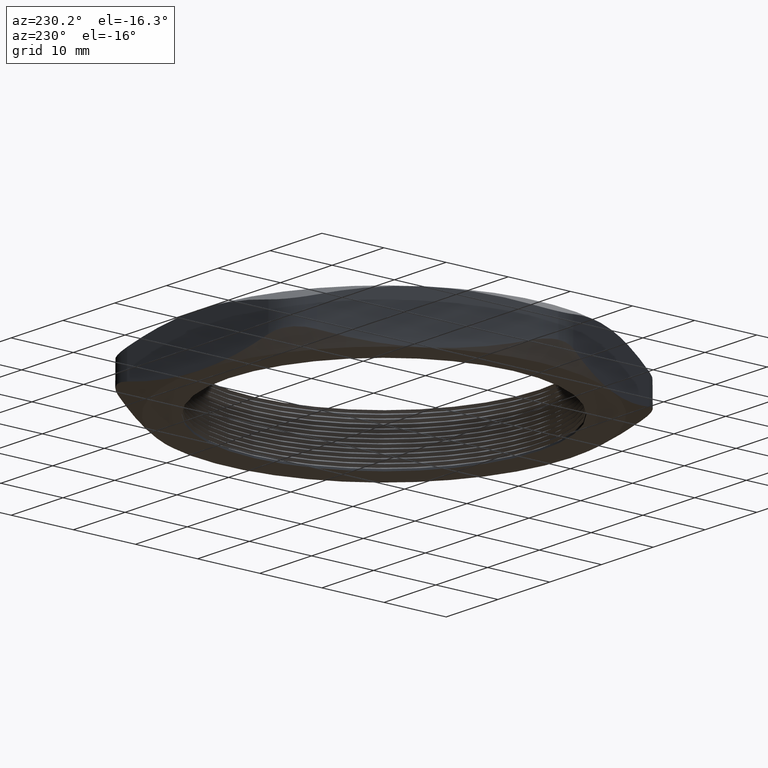
[diagram: clean part render]
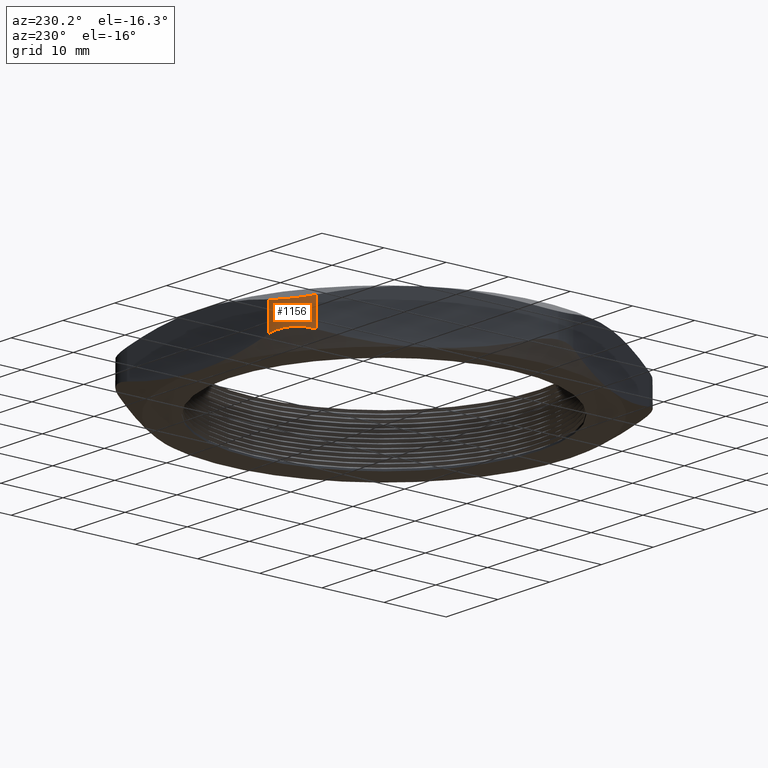
[diagram: same view with one face highlighted and labeled with its STEP entity id]
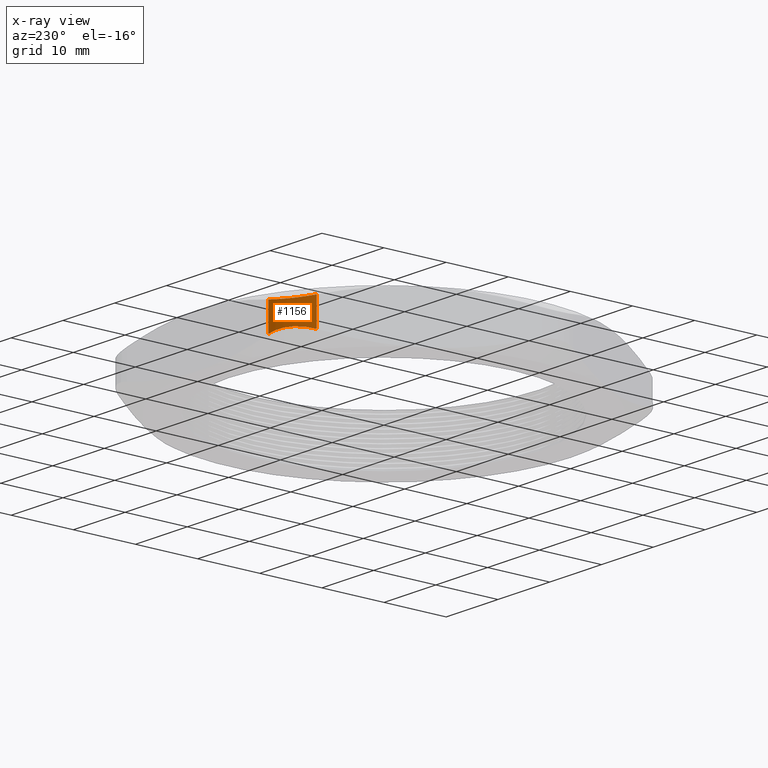
[diagram: x-ray of the same camera — body ghosted, the highlighted face saturated]
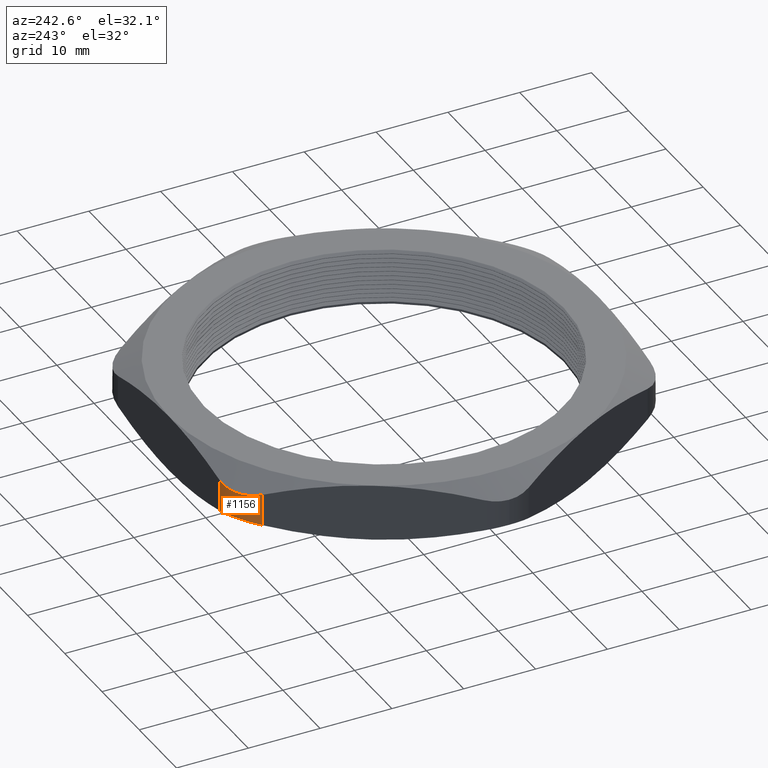
[diagram: same view with one face highlighted and labeled with its STEP entity id]
A machine part, auxiliary view. The second image highlights one B-rep face of the part: STEP entity #1156.
The next image is the same camera in x-ray: the body ghosted, the highlighted face saturated — about 0% of this face is hidden behind the body in this view.
A second angle (auxiliary view) of the same face is appended — the face is thin or edge-on in the first view.
In plain terms, the highlighted cylindrical surface (partial cylindrical patch) has radius 6.35 mm, axis along (0, 0, -1).
Its self-contained STEP definition (entity closure, byte-faithful):
#36 = CARTESIAN_POINT ( 'NONE',  ( -0.7426406280276897100, 1.073708700491182700, 0.2376202493319567200 ) ) ;
#37 = CARTESIAN_POINT ( 'NONE',  ( -0.7292618027920839700, 1.091195033875054200, 0.2336283984944736200 ) ) ;
#38 = CARTESIAN_POINT ( 'NONE',  ( -0.7062144216875241300, 1.114290582444687100, 0.2296370671020663000 ) ) ;
#39 = CARTESIAN_POINT ( 'NONE',  ( -0.6980114634144938300, 1.121510473299437400, 0.2286275982255480400 ) ) ;
#40 = CARTESIAN_POINT ( 'NONE',  ( -0.6805205885013930800, 1.134951313671749100, 0.2272701564282439400 ) ) ;
#41 = CARTESIAN_POINT ( 'NONE',  ( -0.6712656668977307100, 1.141129690300331400, 0.2269317070438221000 ) ) ;
#42 = CARTESIAN_POINT ( 'NONE',  ( -0.6522617552205251000, 1.152081483259583200, 0.2269398675414509000 ) ) ;
#43 = CARTESIAN_POINT ( 'NONE',  ( -0.6424447765496056300, 1.156909620522817500, 0.2272802097087083500 ) ) ;
#44 = CARTESIAN_POINT ( 'NONE',  ( -0.6221819559806108800, 1.165272639550648500, 0.2286349243502648300 ) ) ;
#45 = CARTESIAN_POINT ( 'NONE',  ( -0.6116474606707502600, 1.168826090778309500, 0.2296625828566580800 ) ) ;
#46 = CARTESIAN_POINT ( 'NONE',  ( -0.5799181923317208200, 1.177247800526430600, 0.2336981853431921700 ) ) ;
#47 = CARTESIAN_POINT ( 'NONE',  ( -0.5585335758802318900, 1.179999999999999900, 0.2376214738663904000 ) ) ;
#48 = CARTESIAN_POINT ( 'NONE',  ( -0.5369357503463517700, 1.180000000000000200, 0.2427859541343050100 ) ) ;
#54 = B_SPLINE_CURVE_WITH_KNOTS ( 'NONE', 3,
 ( #48, #47, #46, #45, #44, #43, #42, #41, #40, #39, #38, #37, #36, #99 ),
 .UNSPECIFIED., .F., .F.,
 ( 4, 2, 2, 2, 2, 2, 4 ),
 ( 1.734723475976807100E-018, 0.001669271586080331800, 0.002503907379120496800, 0.003338543172160661800, 0.004173178965200826900, 0.005007814758240991900, 0.006677086344321321900 ),
 .UNSPECIFIED. ) ;
#99 = CARTESIAN_POINT ( 'NONE',  ( -0.7534421012924613600, 1.055000000000000200, 0.2427859541343050700 ) ) ;
#1133 = EDGE_CURVE ( 'NONE', #1209, #1134, #2116, .T. ) ;
#1134 = VERTEX_POINT ( 'NONE', #2045 ) ;
#1156 = ADVANCED_FACE ( 'NONE', ( #2191 ), #2189, .T. ) ;
#1157 = EDGE_LOOP ( 'NONE', ( #1158, #1159, #1160, #1221 ) ) ;
#1158 = ORIENTED_EDGE ( 'NONE', *, *, #1602, .F. ) ;
#1159 = ORIENTED_EDGE ( 'NONE', *, *, #1310, .F. ) ;
#1160 = ORIENTED_EDGE ( 'NONE', *, *, #1220, .F. ) ;
#1209 = VERTEX_POINT ( 'NONE', #2242 ) ;
#1220 = EDGE_CURVE ( 'NONE', #1134, #1312, #2290, .T. ) ;
#1221 = ORIENTED_EDGE ( 'NONE', *, *, #1133, .F. ) ;
#1310 = EDGE_CURVE ( 'NONE', #1312, #1311, #2493, .T. ) ;
#1311 = VERTEX_POINT ( 'NONE', #2489 ) ;
#1312 = VERTEX_POINT ( 'NONE', #2488 ) ;
#1602 = EDGE_CURVE ( 'NONE', #1311, #1209, #54, .T. ) ;
#2045 = CARTESIAN_POINT ( 'NONE',  ( -0.7534421012924612500, 1.055000000000000200, 0.06721404586569494600 ) ) ;
#2046 = DIRECTION ( 'NONE',  ( 0.0000000000000000000, 0.0000000000000000000, -1.000000000000000000 ) ) ;
#2047 = VECTOR ( 'NONE', #2046, 39.37007874015748100 ) ;
#2048 = CARTESIAN_POINT ( 'NONE',  ( -0.7534421012924613600, 1.055000000000000200, 0.3100000000000000000 ) ) ;
#2116 = LINE ( 'NONE', #2048, #2047 ) ;
#2185 = DIRECTION ( 'NONE',  ( -1.000000000000000000, 0.0000000000000000000, 0.0000000000000000000 ) ) ;
#2186 = DIRECTION ( 'NONE',  ( 0.0000000000000000000, 0.0000000000000000000, -1.000000000000000000 ) ) ;
#2187 = CARTESIAN_POINT ( 'NONE',  ( -0.5369357503463516600, 0.9300000000000000500, 0.3100000000000000000 ) ) ;
#2188 = AXIS2_PLACEMENT_3D ( 'NONE', #2187, #2186, #2185 ) ;
#2189 = CYLINDRICAL_SURFACE ( 'NONE', #2188, 0.2500000000000000000 ) ;
#2191 = FACE_OUTER_BOUND ( 'NONE', #1157, .T. ) ;
#2242 = CARTESIAN_POINT ( 'NONE',  ( -0.7534421012924613600, 1.055000000000000200, 0.2427859541343050700 ) ) ;
#2274 = CARTESIAN_POINT ( 'NONE',  ( -0.5369357503463517700, 1.180000000000000200, 0.06721404586569498800 ) ) ;
#2275 = CARTESIAN_POINT ( 'NONE',  ( -0.5585386968758955200, 1.180000000000000400, 0.07237975066804328000 ) ) ;
#2276 = CARTESIAN_POINT ( 'NONE',  ( -0.5803717184231758100, 1.177156764165109300, 0.07637160150552643700 ) ) ;
#2277 = CARTESIAN_POINT ( 'NONE',  ( -0.6118967407510949000, 1.168744920922675700, 0.08036293289793375300 ) ) ;
#2278 = CARTESIAN_POINT ( 'NONE',  ( -0.6222508287803749600, 1.165250896099422800, 0.08137240177445200000 ) ) ;
#2279 = CARTESIAN_POINT ( 'NONE',  ( -0.6426363754475586900, 1.156823774276417400, 0.08272984357175608400 ) ) ;
#2280 = CARTESIAN_POINT ( 'NONE',  ( -0.6526144673638901700, 1.151897965371903900, 0.08306829295617788900 ) ) ;
#2281 = CARTESIAN_POINT ( 'NONE',  ( -0.6716009541221924500, 1.140915991567793800, 0.08306013245854906900 ) ) ;
#2282 = CARTESIAN_POINT ( 'NONE',  ( -0.6806907329805713700, 1.134828307281984900, 0.08271979029129170000 ) ) ;
#2283 = CARTESIAN_POINT ( 'NONE',  ( -0.6980647301955033000, 1.121461699430824900, 0.08136507564973520500 ) ) ;
#2284 = CARTESIAN_POINT ( 'NONE',  ( -0.7064093568846969700, 1.114115284490268200, 0.08033741714334180500 ) ) ;
#2285 = CARTESIAN_POINT ( 'NONE',  ( -0.7295674056393834900, 1.090847786939236100, 0.07630181465680764600 ) ) ;
#2286 = CARTESIAN_POINT ( 'NONE',  ( -0.7426431885255213600, 1.073704265578844700, 0.07237852613360935800 ) ) ;
#2287 = CARTESIAN_POINT ( 'NONE',  ( -0.7534421012924612500, 1.055000000000000200, 0.06721404586569494600 ) ) ;
#2290 = B_SPLINE_CURVE_WITH_KNOTS ( 'NONE', 3,
 ( #2287, #2286, #2285, #2284, #2283, #2282, #2281, #2280, #2279, #2278, #2277, #2276, #2275, #2274 ),
 .UNSPECIFIED., .F., .F.,
 ( 4, 2, 2, 2, 2, 2, 4 ),
 ( 4.982613841084488400E-018, 0.001669271586080337600, 0.002503907379120500300, 0.003338543172160662700, 0.004173178965200825100, 0.005007814758240988400, 0.006677086344321321100 ),
 .UNSPECIFIED. ) ;
#2488 = CARTESIAN_POINT ( 'NONE',  ( -0.5369357503463517700, 1.180000000000000200, 0.06721404586569498800 ) ) ;
#2489 = CARTESIAN_POINT ( 'NONE',  ( -0.5369357503463517700, 1.180000000000000200, 0.2427859541343050100 ) ) ;
#2490 = DIRECTION ( 'NONE',  ( 0.0000000000000000000, 0.0000000000000000000, 1.000000000000000000 ) ) ;
#2491 = VECTOR ( 'NONE', #2490, 39.37007874015748100 ) ;
#2492 = CARTESIAN_POINT ( 'NONE',  ( -0.5369357503463517700, 1.180000000000000200, 0.3100000000000000000 ) ) ;
#2493 = LINE ( 'NONE', #2492, #2491 ) ;